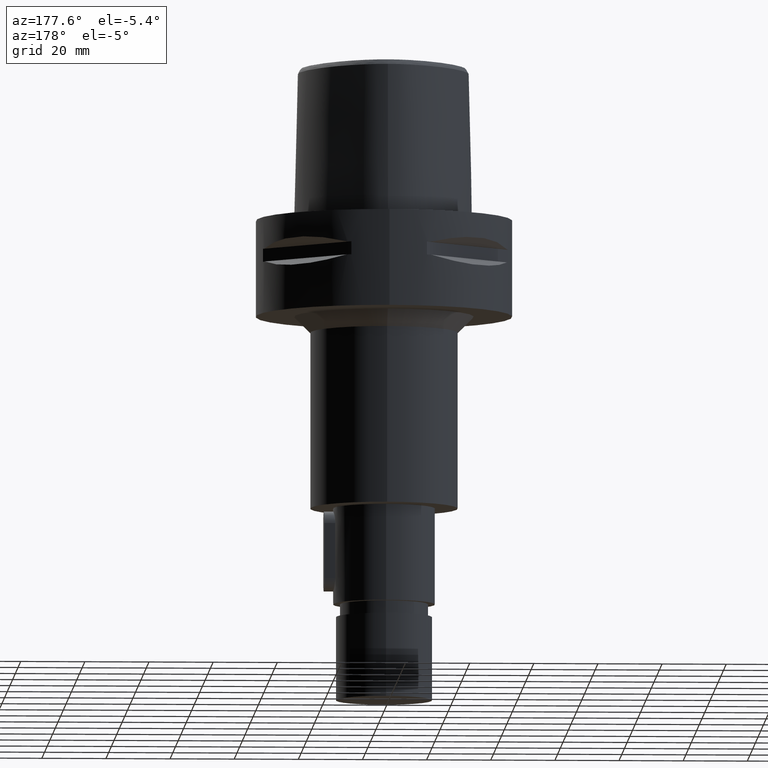
[diagram: clean part render]
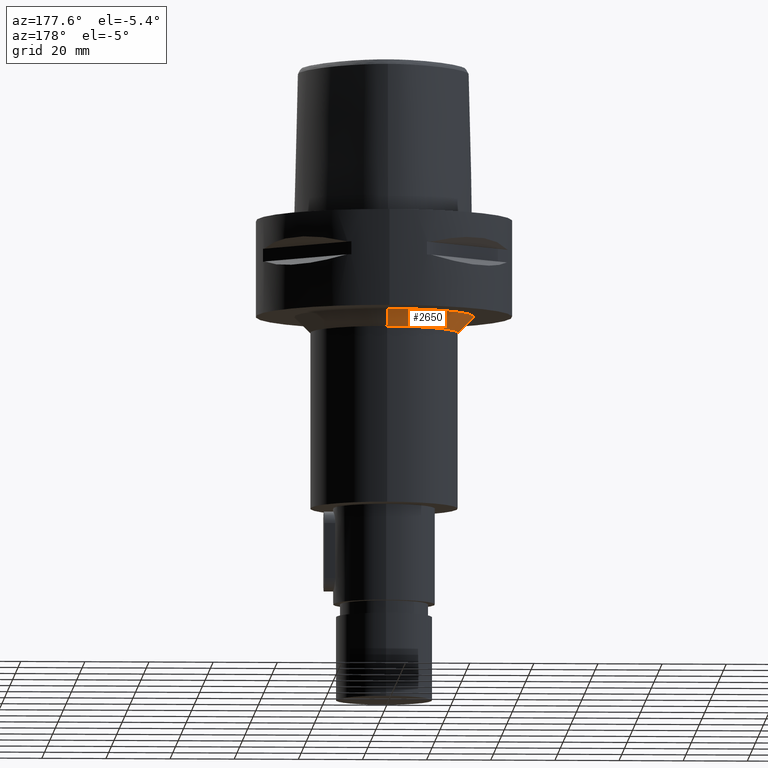
[diagram: same view with one face highlighted and labeled with its STEP entity id]
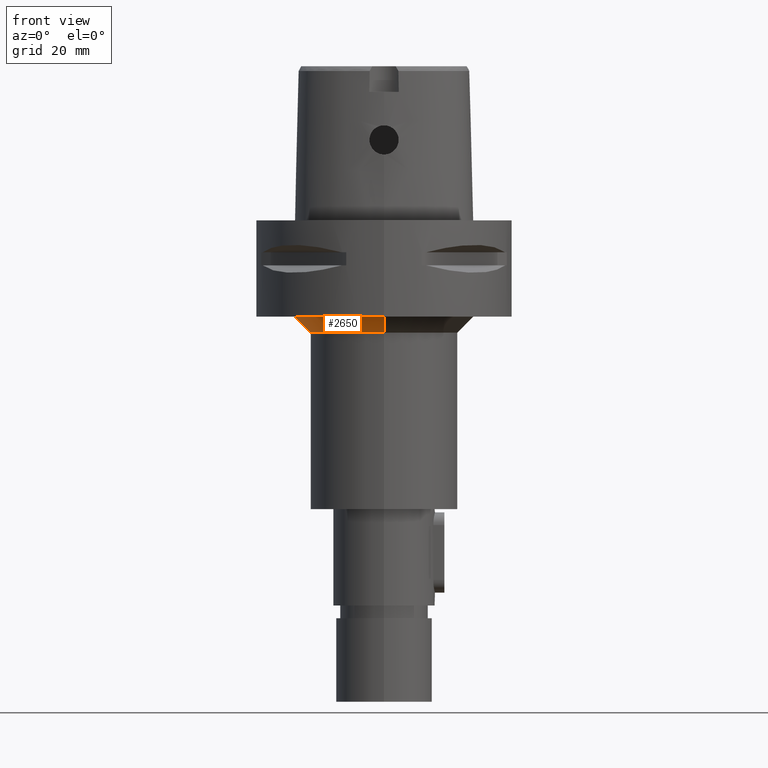
[diagram: same view with one face highlighted and labeled with its STEP entity id]
A machine part, auxiliary view. The second image highlights one B-rep face of the part: STEP entity #2650.
A second angle (front view) of the same face is appended — the face is thin or edge-on in the first view.
In plain terms, the highlighted conical surface has half-angle 45 deg.
Its self-contained STEP definition (entity closure, byte-faithful):
#562=CARTESIAN_POINT('',(0.E0,0.E0,-3.E1));
#563=DIRECTION('',(0.E0,0.E0,-1.E0));
#564=DIRECTION('',(0.E0,-1.E0,0.E0));
#565=AXIS2_PLACEMENT_3D('',#562,#563,#564);
#570=DIRECTION('',(0.E0,-7.071067811865E-1,-7.071067811865E-1));
#571=VECTOR('',#570,7.071067811865E0);
#572=CARTESIAN_POINT('',(0.E0,2.8E1,-3.E1));
#573=LINE('',#572,#571);
#585=DIRECTION('',(0.E0,7.071067811865E-1,-7.071067811865E-1));
#586=VECTOR('',#585,7.071067811865E0);
#587=CARTESIAN_POINT('',(0.E0,-2.8E1,-3.E1));
#588=LINE('',#587,#586);
#592=CARTESIAN_POINT('',(0.E0,0.E0,-3.5E1));
#593=DIRECTION('',(0.E0,0.E0,-1.E0));
#594=DIRECTION('',(0.E0,-1.E0,0.E0));
#595=AXIS2_PLACEMENT_3D('',#592,#593,#594);
#1656=CARTESIAN_POINT('',(0.E0,2.8E1,-3.E1));
#1657=CARTESIAN_POINT('',(0.E0,-2.8E1,-3.E1));
#1658=VERTEX_POINT('',#1656);
#1659=VERTEX_POINT('',#1657);
#1660=CARTESIAN_POINT('',(0.E0,2.3E1,-3.5E1));
#1661=VERTEX_POINT('',#1660);
#1662=CARTESIAN_POINT('',(0.E0,-2.3E1,-3.5E1));
#1663=VERTEX_POINT('',#1662);
#2638=CARTESIAN_POINT('',(0.E0,0.E0,-3.25E1));
#2639=DIRECTION('',(0.E0,0.E0,1.E0));
#2640=DIRECTION('',(0.E0,1.E0,0.E0));
#2641=AXIS2_PLACEMENT_3D('',#2638,#2639,#2640);
#2642=CONICAL_SURFACE('',#2641,2.55E1,4.5E1);
#2643=ORIENTED_EDGE('',*,*,#2628,.F.);
#2644=ORIENTED_EDGE('',*,*,#2618,.F.);
#2645=ORIENTED_EDGE('',*,*,#2632,.T.);
#2647=ORIENTED_EDGE('',*,*,#2646,.T.);
#2648=EDGE_LOOP('',(#2643,#2644,#2645,#2647));
#2649=FACE_OUTER_BOUND('',#2648,.F.);
#566=CIRCLE('',#565,2.8E1);
#596=CIRCLE('',#595,2.3E1);
#2618=EDGE_CURVE('',#1659,#1658,#566,.T.);
#2628=EDGE_CURVE('',#1658,#1661,#573,.T.);
#2632=EDGE_CURVE('',#1659,#1663,#588,.T.);
#2646=EDGE_CURVE('',#1663,#1661,#596,.T.);
#2650=ADVANCED_FACE('',(#2649),#2642,.T.);